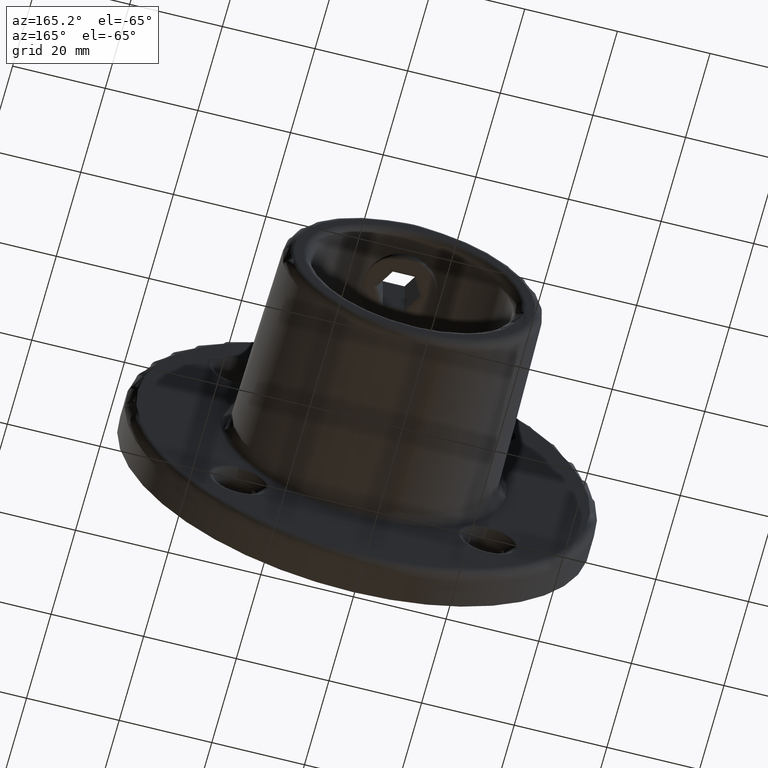
[diagram: clean part render]
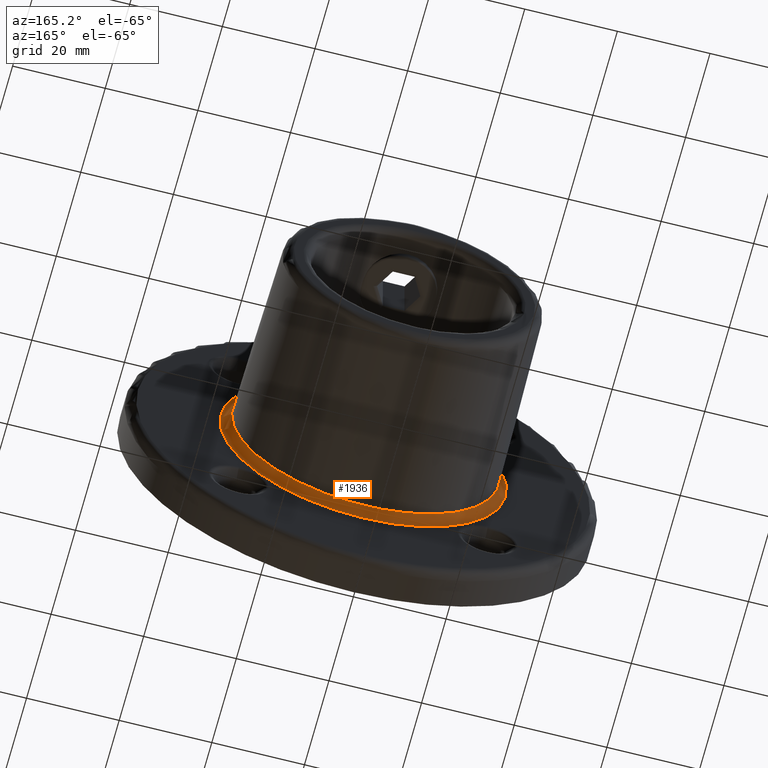
[diagram: same view with one face highlighted and labeled with its STEP entity id]
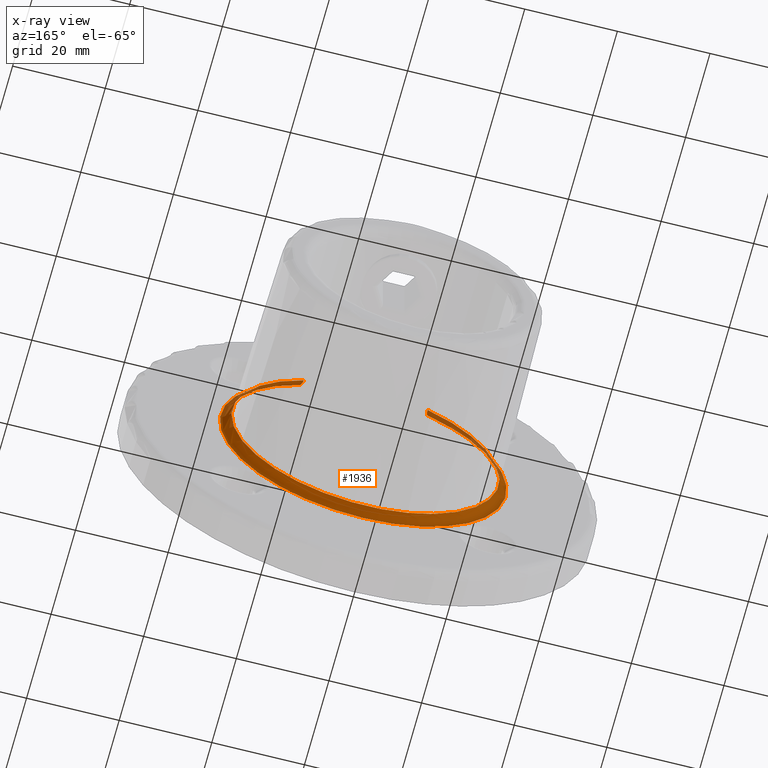
[diagram: x-ray of the same camera — body ghosted, the highlighted face saturated]
A machine part, auxiliary view. The second image highlights one B-rep face of the part: STEP entity #1936.
The next image is the same camera in x-ray: the body ghosted, the highlighted face saturated — about 12% of this face is hidden behind the body in this view.
In plain terms, the highlighted toroidal blend (fillet) surface has major radius 30.9529 mm and minor (blend) radius 2 mm.
Its self-contained STEP definition (entity closure, byte-faithful):
#220 = CIRCLE ( 'NONE', #1995, 30.95294776548571392 ) ;
#241 = CARTESIAN_POINT ( 'NONE',  ( 0.000000000000000000, 9.952394444107424576, 0.000000000000000000 ) ) ;
#282 = AXIS2_PLACEMENT_3D ( 'NONE', #241, #2266, #674 ) ;
#346 = DIRECTION ( 'NONE',  ( -0.8869564312804061323, 2.521301963517955596E-13, 0.4618531032810390680 ) ) ;
#407 = CIRCLE ( 'NONE', #2699, 1.999999999999999112 ) ;
#532 = CARTESIAN_POINT ( 'NONE',  ( 0.000000000000000000, 10.00000000000000178, 0.000000000000000000 ) ) ;
#544 = CARTESIAN_POINT ( 'NONE',  ( -13.37227048483809888, 9.952394444107422800, 25.68050582121609082 ) ) ;
#565 = VERTEX_POINT ( 'NONE', #913 ) ;
#674 = DIRECTION ( 'NONE',  ( 0.000000000000000000, 0.000000000000000000, -1.000000000000000000 ) ) ;
#701 = DIRECTION ( 'NONE',  ( 0.8869564312805200412, 0.000000000000000000, 0.4618531032808207981 ) ) ;
#764 = EDGE_CURVE ( 'NONE', #2724, #2033, #407, .T. ) ;
#805 = VERTEX_POINT ( 'NONE', #1184 ) ;
#818 = EDGE_LOOP ( 'NONE', ( #1433, #2899, #2305, #1956 ) ) ;
#827 = CARTESIAN_POINT ( 'NONE',  ( 14.29571498117850581, 9.999999999999934275, 27.45391608768604996 ) ) ;
#834 = DIRECTION ( 'NONE',  ( 0.000000000000000000, 0.000000000000000000, 1.000000000000000000 ) ) ;
#913 = CARTESIAN_POINT ( 'NONE',  ( 14.29571498117805639, 8.000000000000000000, 27.45391608768628089 ) ) ;
#1161 = CARTESIAN_POINT ( 'NONE',  ( -14.29571498117805461, 8.000000000000000000, 27.45391608768628089 ) ) ;
#1184 = CARTESIAN_POINT ( 'NONE',  ( 13.37227048483809888, 9.952394444107421023, 25.68050582121609082 ) ) ;
#1217 = DIRECTION ( 'NONE',  ( 0.000000000000000000, 1.000000000000000000, 0.000000000000000000 ) ) ;
#1433 = ORIENTED_EDGE ( 'NONE', *, *, #2418, .T. ) ;
#1501 = EDGE_CURVE ( 'NONE', #805, #2033, #1863, .T. ) ;
#1521 = CARTESIAN_POINT ( 'NONE',  ( 0.000000000000000000, 8.000000000000000000, 0.000000000000000000 ) ) ;
#1674 = DIRECTION ( 'NONE',  ( 0.000000000000000000, 0.000000000000000000, 1.000000000000000000 ) ) ;
#1813 = EDGE_CURVE ( 'NONE', #2724, #565, #220, .T. ) ;
#1852 = CIRCLE ( 'NONE', #2380, 2.000000000000000888 ) ;
#1863 = CIRCLE ( 'NONE', #282, 28.95351441799744308 ) ;
#1887 = FACE_OUTER_BOUND ( 'NONE', #818, .T. ) ;
#1936 = ADVANCED_FACE ( 'NONE', ( #1887 ), #2315, .F. ) ;
#1956 = ORIENTED_EDGE ( 'NONE', *, *, #1501, .F. ) ;
#1995 = AXIS2_PLACEMENT_3D ( 'NONE', #1521, #2191, #834 ) ;
#2033 = VERTEX_POINT ( 'NONE', #544 ) ;
#2048 = CARTESIAN_POINT ( 'NONE',  ( -14.29571498117805461, 10.00000000000000000, 27.45391608768628089 ) ) ;
#2191 = DIRECTION ( 'NONE',  ( -0.000000000000000000, -1.000000000000000000, -0.000000000000000000 ) ) ;
#2265 = AXIS2_PLACEMENT_3D ( 'NONE', #532, #1217, #1674 ) ;
#2266 = DIRECTION ( 'NONE',  ( -0.000000000000000000, 1.000000000000000000, -0.000000000000000000 ) ) ;
#2282 = DIRECTION ( 'NONE',  ( 0.4618531032808206871, 0.000000000000000000, -0.8869564312805199302 ) ) ;
#2305 = ORIENTED_EDGE ( 'NONE', *, *, #764, .T. ) ;
#2315 = TOROIDAL_SURFACE ( 'NONE', #2265, 30.95294776548571392, 2.000000000000000000 ) ;
#2380 = AXIS2_PLACEMENT_3D ( 'NONE', #827, #346, #2414 ) ;
#2414 = DIRECTION ( 'NONE',  ( 0.4618531032810387904, 0.000000000000000000, 0.8869564312804062434 ) ) ;
#2418 = EDGE_CURVE ( 'NONE', #805, #565, #1852, .T. ) ;
#2699 = AXIS2_PLACEMENT_3D ( 'NONE', #2048, #701, #2282 ) ;
#2724 = VERTEX_POINT ( 'NONE', #1161 ) ;
#2899 = ORIENTED_EDGE ( 'NONE', *, *, #1813, .F. ) ;